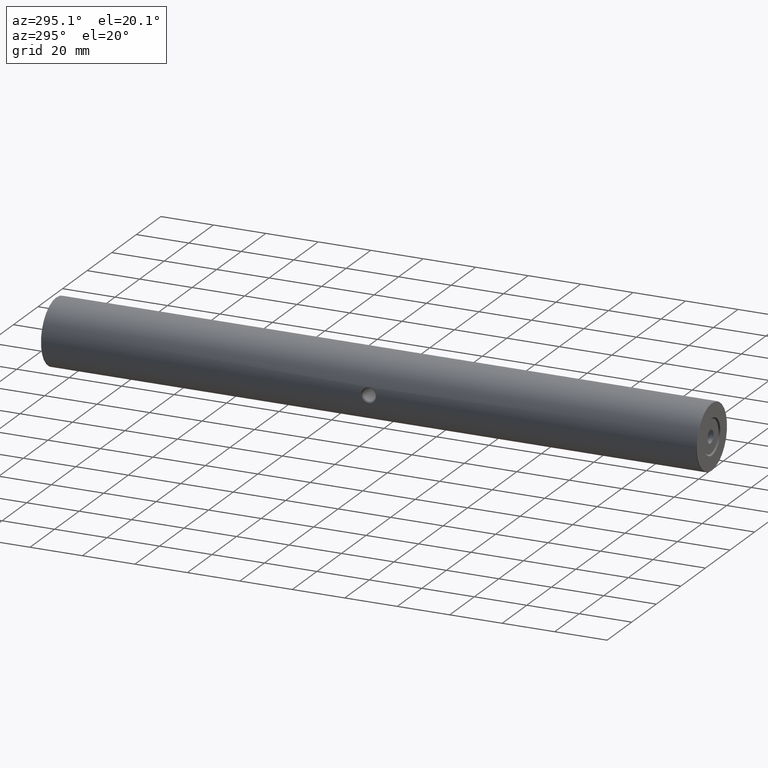
[diagram: clean part render]
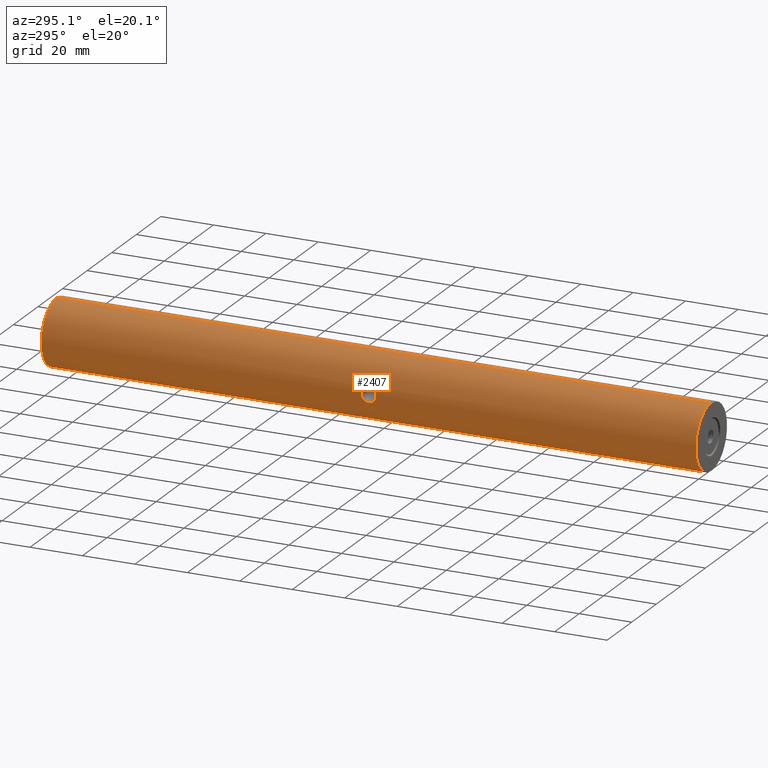
[diagram: same view with one face highlighted and labeled with its STEP entity id]
A machine part, auxiliary view. The second image highlights one B-rep face of the part: STEP entity #2407.
In plain terms, the highlighted cylindrical surface (edge-blend (fillet) strip) has radius 12.5 mm, axis along (-0, -1, -0).
Its self-contained STEP definition (entity closure, byte-faithful):
#23 = CARTESIAN_POINT ( 'NONE',  ( -12.47851299460559105, 2.720964329698334794, -0.7565193609333181746 ) ) ;
#32 = CARTESIAN_POINT ( 'NONE',  ( -12.45805674725447432, -2.631970882763909447, 1.026941101847794524 ) ) ;
#41 = AXIS2_PLACEMENT_3D ( 'NONE', #2624, #202, #3456 ) ;
#70 = CARTESIAN_POINT ( 'NONE',  ( -12.16231875017235886, 0.3679615915604348420, 2.885844094724729469 ) ) ;
#78 = CARTESIAN_POINT ( 'NONE',  ( -12.15673263047605168, -0.1832614811538614830, -2.909269968781202920 ) ) ;
#154 = LINE ( 'NONE', #1784, #834 ) ;
#159 = ORIENTED_EDGE ( 'NONE', *, *, #3327, .T. ) ;
#176 = ORIENTED_EDGE ( 'NONE', *, *, #1940, .T. ) ;
#202 = DIRECTION ( 'NONE',  ( 0.000000000000000000, 1.000000000000000000, 0.000000000000000000 ) ) ;
#271 = CARTESIAN_POINT ( 'NONE',  ( -12.15671735939536369, 0.09018561921769735479, 2.909333780572478378 ) ) ;
#296 = CARTESIAN_POINT ( 'NONE',  ( -12.28476822301779414, 1.716086421342859270, -2.312137235428158188 ) ) ;
#303 = CARTESIAN_POINT ( 'NONE',  ( -12.43347084640632616, 2.521195660960572571, 1.290731676587638432 ) ) ;
#310 = CARTESIAN_POINT ( 'NONE',  ( -12.49566254783373331, 2.793496844385826794, -0.3795070363945131642 ) ) ;
#326 = EDGE_CURVE ( 'NONE', #1485, #2177, #2255, .T. ) ;
#327 = CARTESIAN_POINT ( 'NONE',  ( -12.35169256054924780, -2.116180355843247263, -1.924612566768859612 ) ) ;
#339 = CARTESIAN_POINT ( 'NONE',  ( -12.17866808526127542, 0.7286786484699223632, 2.816291394618220867 ) ) ;
#347 = CARTESIAN_POINT ( 'NONE',  ( -12.24295047431575334, -1.409825724614835130, -2.524256676530458599 ) ) ;
#366 = CARTESIAN_POINT ( 'NONE',  ( 0.000000000000000000, -124.7500000000000000, -12.50000000000000000 ) ) ;
#438 = DIRECTION ( 'NONE',  ( 0.000000000000000000, 0.000000000000000000, 1.000000000000000000 ) ) ;
#532 = DIRECTION ( 'NONE',  ( -0.000000000000000000, -1.000000000000000000, -0.000000000000000000 ) ) ;
#536 = CARTESIAN_POINT ( 'NONE',  ( -12.49999964343593994, 2.811332829105589681, 0.002985649244160257492 ) ) ;
#569 = CARTESIAN_POINT ( 'NONE',  ( -12.22404249393075304, -1.249342550221567594, 2.613110787989891826 ) ) ;
#584 = CARTESIAN_POINT ( 'NONE',  ( -12.44205673783505972, 2.560321374562893659, 1.205397254339001911 ) ) ;
#592 = CARTESIAN_POINT ( 'NONE',  ( -12.16125236198514870, -0.3685305054158170002, -2.890576694210015951 ) ) ;
#602 = CARTESIAN_POINT ( 'NONE',  ( -12.24281169550273596, 1.408578047291354274, 2.524885237450628761 ) ) ;
#611 = CARTESIAN_POINT ( 'NONE',  ( -12.17884646332030130, 0.7315924227345727004, -2.815523759902236911 ) ) ;
#627 = CARTESIAN_POINT ( 'NONE',  ( -12.37454094155888562, 2.248477219804380312, -1.787621408678658597 ) ) ;
#715 = CARTESIAN_POINT ( 'NONE',  ( 1.530808498934191521E-15, -124.7500000000000000, 12.50000000000000000 ) ) ;
#722 = CARTESIAN_POINT ( 'NONE',  ( -12.50000000000000000, -2.811334309538643161, 2.344116895723715670E-15 ) ) ;
#729 = AXIS2_PLACEMENT_3D ( 'NONE', #937, #2005, #438 ) ;
#813 = CARTESIAN_POINT ( 'NONE',  ( -12.37391841407369597, 2.232736101158946607, 1.778023145573937258 ) ) ;
#829 = CARTESIAN_POINT ( 'NONE',  ( -12.22385500825091675, 1.247883732498886289, 2.614005073976468196 ) ) ;
#834 = VECTOR ( 'NONE', #1266, 1000.000000000000000 ) ;
#874 = CARTESIAN_POINT ( 'NONE',  ( -12.46596532903256538, 2.667387358576708056, -0.9387248305094008094 ) ) ;
#895 = CARTESIAN_POINT ( 'NONE',  ( -12.48171116156371951, -2.737891347582954271, -0.7632233049266514691 ) ) ;
#937 = CARTESIAN_POINT ( 'NONE',  ( 0.000000000000000000, 124.7500000000000000, 0.000000000000000000 ) ) ;
#970 = CARTESIAN_POINT ( 'NONE',  ( 0.000000000000000000, 125.0000000000000000, 0.000000000000000000 ) ) ;
#1057 = ORIENTED_EDGE ( 'NONE', *, *, #3482, .F. ) ;
#1099 = EDGE_CURVE ( 'NONE', #2457, #2855, #2270, .T. ) ;
#1100 = CARTESIAN_POINT ( 'NONE',  ( -12.50004509197456493, 2.811518133292639554, -0.1872934726891225532 ) ) ;
#1110 = CARTESIAN_POINT ( 'NONE',  ( -12.46509704974771182, -2.662814495492586087, 0.9379835437370548368 ) ) ;
#1147 = CARTESIAN_POINT ( 'NONE',  ( -12.16132291492580997, -0.3700627356976460280, 2.890277161972178099 ) ) ;
#1180 = VERTEX_POINT ( 'NONE', #366 ) ;
#1266 = DIRECTION ( 'NONE',  ( -0.000000000000000000, -1.000000000000000000, -0.000000000000000000 ) ) ;
#1326 = CARTESIAN_POINT ( 'NONE',  ( 1.530808498934191521E-15, 125.0000000000000000, 12.50000000000000000 ) ) ;
#1348 = CARTESIAN_POINT ( 'NONE',  ( -12.49560651372432396, -2.793258129874669038, 0.3804963979137271357 ) ) ;
#1367 = CARTESIAN_POINT ( 'NONE',  ( -12.49990874635869353, 2.810962220731489936, 0.3835438931107258420 ) ) ;
#1385 = CARTESIAN_POINT ( 'NONE',  ( -12.43444791239801539, -2.526265810535508916, 1.290600206016236040 ) ) ;
#1402 = CARTESIAN_POINT ( 'NONE',  ( -12.30684950149739976, 1.856315101401199819, 2.193200508882796829 ) ) ;
#1410 = CARTESIAN_POINT ( 'NONE',  ( -12.19171011279895467, 0.9077267145292203798, -2.760034984780193490 ) ) ;
#1419 = CARTESIAN_POINT ( 'NONE',  ( -12.35185459945452635, 2.117106502089035391, 1.923632261791373033 ) ) ;
#1485 = VERTEX_POINT ( 'NONE', #1493 ) ;
#1493 = CARTESIAN_POINT ( 'NONE',  ( 1.530808498934191521E-15, 124.7500000000000000, 12.50000000000000000 ) ) ;
#1615 = CARTESIAN_POINT ( 'NONE',  ( -12.28430050464119994, 1.712976816624139031, 2.314615472493585013 ) ) ;
#1635 = CARTESIAN_POINT ( 'NONE',  ( -12.15783895445867024, 0.1835595295109118674, 2.904659270430681950 ) ) ;
#1653 = CARTESIAN_POINT ( 'NONE',  ( -12.28493468403330269, -1.717322566993723321, 2.311297055585751270 ) ) ;
#1669 = CARTESIAN_POINT ( 'NONE',  ( -12.41571775232795538, -2.439820204690144489, 1.457889401737933799 ) ) ;
#1685 = CARTESIAN_POINT ( 'NONE',  ( -12.19152332458614829, 0.9056230339601760715, 2.760871749210322079 ) ) ;
#1710 = CARTESIAN_POINT ( 'NONE',  ( -12.50000000000000000, -2.811334309538643161, 2.344116895723715670E-15 ) ) ;
#1781 = DIRECTION ( 'NONE',  ( -0.000000000000000000, -1.000000000000000000, -0.000000000000000000 ) ) ;
#1782 = EDGE_LOOP ( 'NONE', ( #1855, #176 ) ) ;
#1784 = CARTESIAN_POINT ( 'NONE',  ( 0.000000000000000000, 125.0000000000000000, -12.50000000000000000 ) ) ;
#1855 = ORIENTED_EDGE ( 'NONE', *, *, #1099, .T. ) ;
#1908 = CARTESIAN_POINT ( 'NONE',  ( -12.16561357746175176, 0.4581379767490354471, 2.871969650164978738 ) ) ;
#1916 = CARTESIAN_POINT ( 'NONE',  ( -12.17888807554397701, -0.7324554458593517392, -2.815346849035166521 ) ) ;
#1924 = CARTESIAN_POINT ( 'NONE',  ( -12.50000000000000000, -2.811334327246072462, 0.1904570689458807697 ) ) ;
#1930 = CARTESIAN_POINT ( 'NONE',  ( -12.22368821243206405, -1.246133879218273455, -2.614763383678839759 ) ) ;
#1940 = EDGE_CURVE ( 'NONE', #2855, #2457, #2995, .T. ) ;
#1954 = EDGE_LOOP ( 'NONE', ( #1057, #2316, #3503, #159 ) ) ;
#2005 = DIRECTION ( 'NONE',  ( -0.000000000000000000, -1.000000000000000000, -0.000000000000000000 ) ) ;
#2103 = EDGE_CURVE ( 'NONE', #2177, #1180, #154, .T. ) ;
#2142 = CIRCLE ( 'NONE', #41, 12.50000000000000000 ) ;
#2177 = VERTEX_POINT ( 'NONE', #3127 ) ;
#2203 = CARTESIAN_POINT ( 'NONE',  ( -12.43423512944432652, -2.525307397416742816, -1.292750006445354760 ) ) ;
#2207 = FACE_BOUND ( 'NONE', #1782, .T. ) ;
#2222 = CARTESIAN_POINT ( 'NONE',  ( -12.22384990029679130, 1.247702640389471540, -2.614016489379703767 ) ) ;
#2233 = CARTESIAN_POINT ( 'NONE',  ( -12.30747808187901171, -1.860100840545285017, 2.189606163726566024 ) ) ;
#2255 = CIRCLE ( 'NONE', #729, 12.50000000000000000 ) ;
#2270 = B_SPLINE_CURVE_WITH_KNOTS ( 'NONE', 3,
 ( #1710, #3330, #895, #2203, #2724, #3277, #327, #2503, #3011, #347, #1930, #3027, #1916, #592, #78, #3042, #2755, #611, #1410, #2222, #3061, #296, #3310, #627, #2452, #874, #23, #310, #1100, #2791 ),
 .UNSPECIFIED., .F., .F.,
 ( 4, 2, 2, 2, 2, 2, 2, 2, 2, 2, 2, 2, 2, 2, 4 ),
 ( 0.000000000000000000, 0.06250000000000000000, 0.09375000000000000000, 0.1250000000000000000, 0.1562499999999999722, 0.1874999999999999445, 0.2187499999999999445, 0.2499999999999999445, 0.2812499999999999445, 0.3124999999999999445, 0.3437499999999999445, 0.3749999999999999445, 0.4375000000000000000, 0.4687500000000000000, 0.5000000000000000000 ),
 .UNSPECIFIED. ) ;
#2316 = ORIENTED_EDGE ( 'NONE', *, *, #326, .T. ) ;
#2407 = ADVANCED_FACE ( 'NONE', ( #2472, #2207 ), #3445, .T. ) ;
#2452 = CARTESIAN_POINT ( 'NONE',  ( -12.41845336981653425, 2.454638667742665703, -1.469013093855733754 ) ) ;
#2457 = VERTEX_POINT ( 'NONE', #722 ) ;
#2472 = FACE_OUTER_BOUND ( 'NONE', #1954, .T. ) ;
#2491 = VERTEX_POINT ( 'NONE', #715 ) ;
#2503 = CARTESIAN_POINT ( 'NONE',  ( -12.30696290918598912, -1.856959416305833166, -2.192511481021837572 ) ) ;
#2624 = CARTESIAN_POINT ( 'NONE',  ( 0.000000000000000000, -124.7500000000000000, 0.000000000000000000 ) ) ;
#2717 = CARTESIAN_POINT ( 'NONE',  ( -12.48143524179535824, 2.736691017061328779, 0.7667521354820904245 ) ) ;
#2724 = CARTESIAN_POINT ( 'NONE',  ( -12.41536121446257113, -2.438111153293167188, -1.460847891155159006 ) ) ;
#2732 = CARTESIAN_POINT ( 'NONE',  ( -12.37443294316324405, -2.235398125222378241, 1.774513496237085874 ) ) ;
#2738 = CARTESIAN_POINT ( 'NONE',  ( -12.49999964343593994, 2.811332829105589681, 0.002985649244160257492 ) ) ;
#2747 = CARTESIAN_POINT ( 'NONE',  ( -12.17886604983053545, -0.7319245596696670741, 2.815439371466328389 ) ) ;
#2755 = CARTESIAN_POINT ( 'NONE',  ( -12.16131421082487485, 0.3698112151764299527, -2.890313457964805099 ) ) ;
#2791 = CARTESIAN_POINT ( 'NONE',  ( -12.49999964343593994, 2.811332829105589681, 0.002985649244160257492 ) ) ;
#2820 = VECTOR ( 'NONE', #532, 1000.000000000000000 ) ;
#2855 = VERTEX_POINT ( 'NONE', #2738 ) ;
#2912 = DIRECTION ( 'NONE',  ( 0.000000000000000000, 0.000000000000000000, -1.000000000000000000 ) ) ;
#2970 = CARTESIAN_POINT ( 'NONE',  ( -12.48287847929657879, -2.739428597905584351, 0.6606699514720482114 ) ) ;
#2983 = LINE ( 'NONE', #1326, #2820 ) ;
#2986 = CARTESIAN_POINT ( 'NONE',  ( -12.24307060023176774, -1.410778269372165106, 2.523675206492379086 ) ) ;
#2995 = B_SPLINE_CURVE_WITH_KNOTS ( 'NONE', 3,
 ( #536, #1367, #2717, #584, #303, #3301, #3034, #813, #1419, #1402, #1615, #602, #829, #1685, #339, #1908, #70, #1635, #271, #3253, #1147, #2747, #3005, #569, #2986, #1653, #2233, #3020, #2732, #1669, #1385, #32, #1110, #3321, #2970, #1348, #1924, #3286 ),
 .UNSPECIFIED., .F., .F.,
 ( 4, 2, 2, 2, 2, 2, 2, 2, 2, 2, 2, 2, 2, 2, 2, 2, 2, 2, 4 ),
 ( 0.5000000000000000000, 0.5624999999999997780, 0.5781249999999996669, 0.5937499999999996669, 0.6249999999999996669, 0.6562499999999996669, 0.6874999999999996669, 0.7187499999999996669, 0.7343749999999996669, 0.7499999999999997780, 0.7812499999999997780, 0.8124999999999997780, 0.8437499999999997780, 0.8749999999999997780, 0.9062499999999997780, 0.9374999999999998890, 0.9531250000000000000, 0.9687500000000000000, 1.000000000000000000 ),
 .UNSPECIFIED. ) ;
#3005 = CARTESIAN_POINT ( 'NONE',  ( -12.19198951221228100, -0.9110736301734624343, 2.758795863749214039 ) ) ;
#3011 = CARTESIAN_POINT ( 'NONE',  ( -12.28481407572621897, -1.716511945839781061, -2.311936679581829690 ) ) ;
#3020 = CARTESIAN_POINT ( 'NONE',  ( -12.35208699617665218, -2.118307149488120267, 1.922066264998498308 ) ) ;
#3027 = CARTESIAN_POINT ( 'NONE',  ( -12.19168018844492707, -0.9072677355463540927, -2.760158555238747535 ) ) ;
#3034 = CARTESIAN_POINT ( 'NONE',  ( -12.40480306600049154, 2.385830835984638298, 1.541806310738120134 ) ) ;
#3042 = CARTESIAN_POINT ( 'NONE',  ( -12.15672725494320261, 0.1839734469533717276, -2.909292430996661238 ) ) ;
#3061 = CARTESIAN_POINT ( 'NONE',  ( -12.24327437962417520, 1.412287651812694556, -2.522645705199112687 ) ) ;
#3127 = CARTESIAN_POINT ( 'NONE',  ( 0.000000000000000000, 124.7500000000000000, -12.50000000000000000 ) ) ;
#3253 = CARTESIAN_POINT ( 'NONE',  ( -12.15675563326899855, -0.1864397081959290603, 2.909173849222767672 ) ) ;
#3277 = CARTESIAN_POINT ( 'NONE',  ( -12.37419558673063946, -2.234165659059715203, -1.776106479918930559 ) ) ;
#3286 = CARTESIAN_POINT ( 'NONE',  ( -12.50000000000000000, -2.811334309538643161, 2.344116895723715670E-15 ) ) ;
#3301 = CARTESIAN_POINT ( 'NONE',  ( -12.41482217478849570, 2.433872423544364505, 1.459238129217659719 ) ) ;
#3310 = CARTESIAN_POINT ( 'NONE',  ( -12.30699104575671754, 1.857180101771341407, -2.192415301313816567 ) ) ;
#3321 = CARTESIAN_POINT ( 'NONE',  ( -12.47754882703454804, -2.716740496922906534, 0.7544752195529423888 ) ) ;
#3327 = EDGE_CURVE ( 'NONE', #1180, #2491, #2142, .T. ) ;
#3330 = CARTESIAN_POINT ( 'NONE',  ( -12.50000000000000178, -2.811334273817883034, -0.3842050183266089158 ) ) ;
#3445 = CYLINDRICAL_SURFACE ( 'NONE', #3455, 12.50000000000000000 ) ;
#3455 = AXIS2_PLACEMENT_3D ( 'NONE', #970, #1781, #2912 ) ;
#3456 = DIRECTION ( 'NONE',  ( 0.000000000000000000, 0.000000000000000000, 1.000000000000000000 ) ) ;
#3482 = EDGE_CURVE ( 'NONE', #1485, #2491, #2983, .T. ) ;
#3503 = ORIENTED_EDGE ( 'NONE', *, *, #2103, .T. ) ;